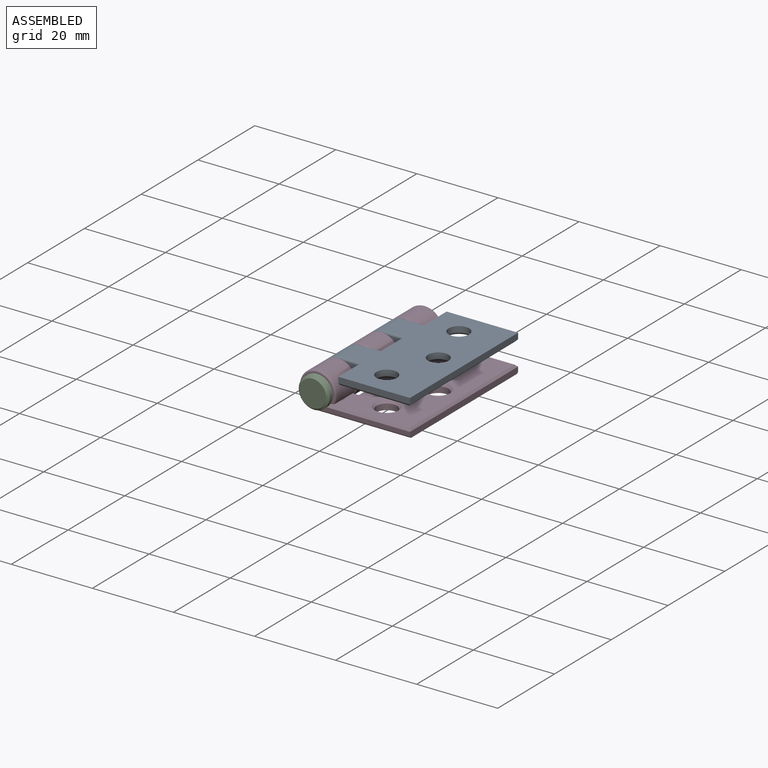
[diagram: assembled view]
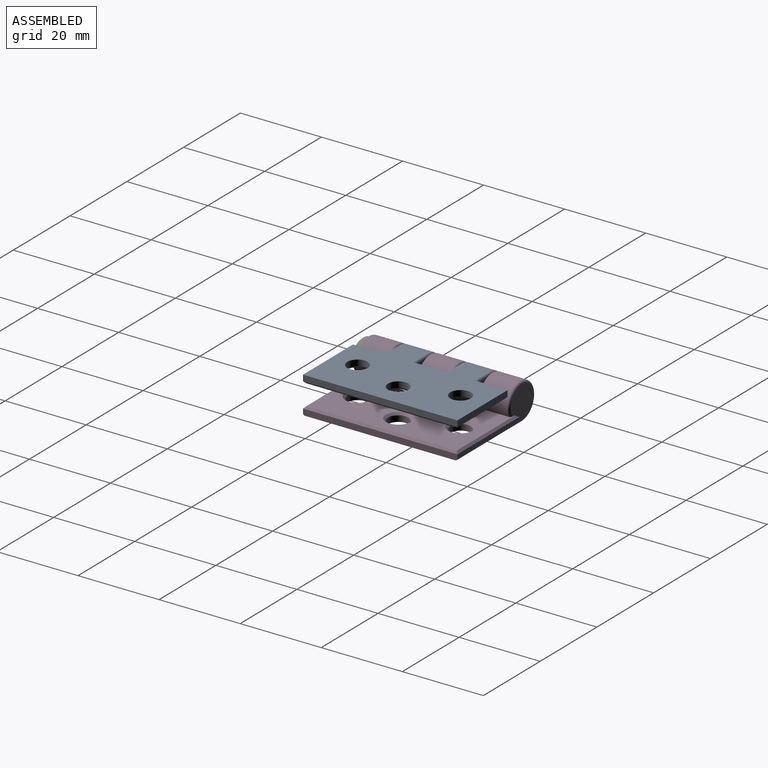
[diagram: assembled view, second angle]
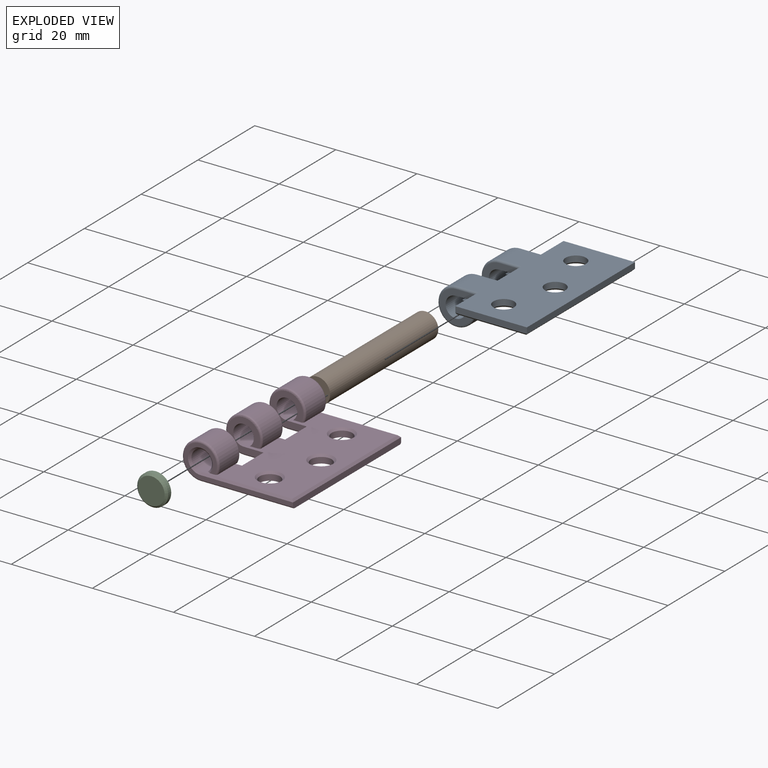
[diagram: exploded view]
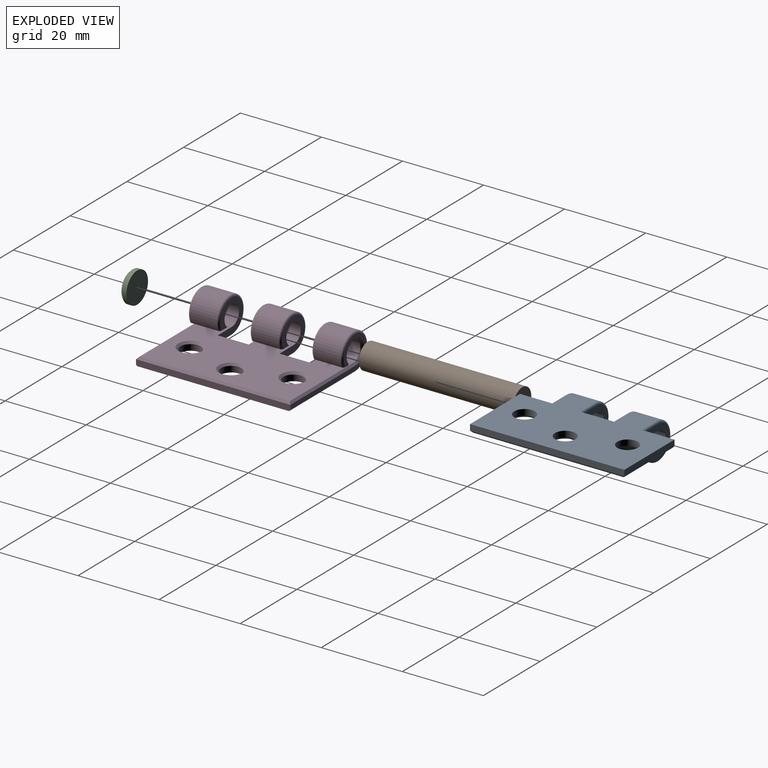
[diagram: exploded view, second angle]
ASSEMBLY  parts=4 mates=3
PART A: 35 faces, bbox 27.8x38.1x9.8 mm
  f0: plane 37.08x22.35mm, normal (0,0,1), area 627.4mm2, adj f6,f7,f10,f15,f16,f17,f18,f19
  f1: plane 38.1x22.86mm, normal (0,0,-1), area 680.3mm2, adj f2,f3,f8,f9,f11,f12,f13,f14
  f2: cylinder r=4.52mm len=9.04mm, axis (0,1,0), area 154.5mm2, adj f1,f4,f27,f29
  f3: cylinder r=4.52mm len=9.04mm, axis (0,1,0), area 154.5mm2, adj f1,f5,f31,f33
  f4: plane 7.62x2.5mm, normal (0,0,-1), area 18.9mm2, adj f2,f6,f23,f25,f27,f29
  f5: plane 7.62x2.5mm, normal (0,0,-1), area 18.9mm2, adj f3,f7,f21,f26,f31,f33
  f6: cylinder r=2.54mm len=7.62mm, axis (0,1,0), area 108.9mm2, adj f0,f4,f23,f25
  f7: cylinder r=2.54mm len=7.62mm, axis (0,1,0), area 108.9mm2, adj f0,f5,f21,f26
  f8: plane 17.64x1.47mm, normal (0,-1,0), area 26mm2, adj f1,f10,f11,f20
  f9: plane 17.64x1.47mm, normal (0,1,0), area 26mm2, adj f1,f11,f15,f22
  f10: plane 17.64x0.51mm, normal (0,-0.71,0.71), area 12.5mm2, adj f0,f8,f16,f20
  f11: plane 38.1x1.47mm, normal (-1,0,0), area 56.1mm2, adj f1,f8,f9,f16
  f12: cylinder r=2.54mm len=5.08mm, axis (0,0,1), area 23.5mm2, adj f1,f17
  f13: cylinder r=2.54mm len=5.08mm, axis (0,0,1), area 23.5mm2, adj f1,f18
  f14: cylinder r=2.54mm len=5.08mm, axis (0,0,1), area 23.5mm2, adj f1,f19
  f15: plane 17.64x0.51mm, normal (0,0.71,0.71), area 12.5mm2, adj f0,f9,f16,f22
  f16: plane 38.1x0.51mm, normal (-0.71,0,0.71), area 27mm2, adj f0,f10,f11,f15
  f17: cone r=2.54mm half-angle=45deg, axis (0,0,1), area 12.6mm2, adj f0,f12
  f18: cone r=2.54mm half-angle=45deg, axis (0,0,1), area 12.6mm2, adj f0,f13
  f19: cone r=2.54mm half-angle=45deg, axis (0,0,1), area 12.6mm2, adj f0,f14
  f20: plane 8.13x1.98mm, normal (1,0,0), area 15mm2, adj f0,f1,f8,f10,f21,f34
  f21: plane 9.23x8.03mm, normal (0,-1,0), area 33.7mm2, adj f0,f5,f7,f20,f33,f34
  f22: plane 8.13x1.98mm, normal (1,0,0), area 15mm2, adj f0,f1,f9,f15,f23,f28
  f23: plane 9.23x8.03mm, normal (0,1,0), area 33.7mm2, adj f0,f4,f6,f22,f27,f28
  f24: plane 8.64x1.98mm, normal (1,0,0), area 15.2mm2, adj f0,f1,f25,f26,f30,f32
  f25: plane 9.23x8.03mm, normal (0,-1,0), area 33.7mm2, adj f0,f4,f6,f24,f29,f30
  f26: plane 9.23x8.03mm, normal (0,1,0), area 33.7mm2, adj f0,f5,f7,f24,f31,f32
  f27: torus R=4.01mm, axis (0,-1,0), area 18mm2, adj f2,f4,f23,f28
  f28: cylinder r=0.51mm len=5.22mm, axis (1,0,0), area 4.2mm2, adj f1,f22,f23,f27
  f29: torus R=4.01mm, axis (0,-1,0), area 18mm2, adj f2,f4,f25,f30
  f30: cylinder r=0.51mm len=5.22mm, axis (-1,0,0), area 4.2mm2, adj f1,f24,f25,f29
  f31: torus R=4.01mm, axis (0,-1,0), area 18mm2, adj f3,f5,f26,f32
  f32: cylinder r=0.51mm len=5.22mm, axis (1,0,0), area 4.2mm2, adj f1,f24,f26,f31
  f33: torus R=4.01mm, axis (0,-1,0), area 18mm2, adj f3,f5,f21,f34
  f34: cylinder r=0.51mm len=5.22mm, axis (-1,0,0), area 4.2mm2, adj f1,f20,f21,f33
PART B: 3 faces, bbox 6.4x38.1x6.4 mm
  f0: cylinder r=3.17mm len=38.1mm, axis (0,-1,0), area 760.1mm2, adj f1,f2
  f1: plane 6.35x6.35mm, normal (0,1,0), area 31.7mm2, adj f0
  f2: plane 6.35x6.35mm, normal (0,-1,0), area 31.7mm2, adj f0
PART C: 4 faces, bbox 7.6x1.6x7.6 mm
  f0: cylinder r=3.81mm len=7.62mm, axis (0,1,0), area 25.8mm2, adj f2,f3
  f1: plane 6.6x6.6mm, normal (0,-1,0), area 34.3mm2, adj f3
  f2: plane 7.62x7.62mm, normal (0,1,0), area 45.6mm2, adj f0
  f3: cone r=3.3mm half-angle=45deg, axis (0,1,0), area 16.1mm2, adj f0,f1
PART D: 43 faces, bbox 27.8x38.1x9.8 mm
  f0: cylinder r=4.52mm len=9.04mm, axis (0,1,0), area 154.5mm2, adj f2,f8,f33,f35
  f1: cylinder r=4.52mm len=9.04mm, axis (0,1,0), area 154.5mm2, adj f3,f8,f37,f41
  f2: plane 7.62x2.5mm, normal (0,0,-1), area 18.9mm2, adj f0,f4,f26,f30,f33,f35
  f3: plane 7.62x2.5mm, normal (0,0,-1), area 18.7mm2, adj f1,f5,f12,f21,f27,f37,f41
  f4: cylinder r=2.54mm len=7.62mm, axis (0,1,0), area 108.9mm2, adj f2,f6,f26,f30
  f5: cylinder r=2.54mm len=7.11mm, axis (0,1,0), area 101.7mm2, adj f3,f6,f21,f27
  f6: plane 37.08x22.35mm, normal (0,0,1), area 666.3mm2, adj f4,f5,f11,f18,f19,f20,f22,f23
  f7: plane 38.1x1.47mm, normal (1,0,0), area 56mm2, adj f8,f12,f13,f19,f40,f42
  f8: plane 37.08x22.86mm, normal (0,0,-1), area 701.9mm2, adj f0,f1,f7,f9,f14,f15,f16,f25
  f9: cylinder r=4.52mm len=9.04mm, axis (0,1,0), area 154.5mm2, adj f8,f10,f31,f39
  f10: plane 7.62x2.5mm, normal (0,0,-1), area 18.7mm2, adj f9,f11,f13,f17,f29,f31,f39
  f11: cylinder r=2.54mm len=7.11mm, axis (0,1,0), area 101.7mm2, adj f6,f10,f17,f29
  f12: plane 26.87x8.03mm, normal (0,-1,0), area 40.2mm2, adj f3,f7,f20,f21,f41,f42
  f13: plane 26.87x8.03mm, normal (0,1,0), area 40.2mm2, adj f7,f10,f17,f18,f39,f40
  f14: cylinder r=2.54mm len=5.08mm, axis (0,0,1), area 23.5mm2, adj f8,f22
  f15: cylinder r=2.54mm len=5.08mm, axis (0,0,1), area 23.5mm2, adj f8,f23
  f16: cylinder r=2.54mm len=5.08mm, axis (0,0,1), area 23.5mm2, adj f8,f24
  f17: cone r=3.05mm half-angle=45deg, axis (0,1,0), area 11.1mm2, adj f10,f11,f13,f18
  f18: plane 22.86x0.51mm, normal (0,0.71,0.71), area 16.2mm2, adj f6,f13,f17,f19
  f19: plane 38.1x0.51mm, normal (0.71,0,0.71), area 27mm2, adj f6,f7,f18,f20
  f20: plane 22.86x0.51mm, normal (0,-0.71,0.71), area 16.2mm2, adj f6,f12,f19,f21
  f21: cone r=2.54mm half-angle=45deg, axis (0,-1,0), area 11.1mm2, adj f3,f5,f12,f20
  f22: cone r=2.54mm half-angle=45deg, axis (0,0,1), area 12.6mm2, adj f6,f14
  f23: cone r=2.54mm half-angle=45deg, axis (0,0,1), area 12.6mm2, adj f6,f15
  f24: cone r=2.54mm half-angle=45deg, axis (0,0,1), area 12.6mm2, adj f6,f16
  f25: plane 8.64x1.98mm, normal (-1,0,0), area 15.2mm2, adj f6,f8,f26,f27,f36,f38
  f26: plane 8.94x8.03mm, normal (0,-1,0), area 33.2mm2, adj f2,f4,f6,f25,f35,f36
  f27: plane 8.94x8.03mm, normal (0,1,0), area 33.2mm2, adj f3,f5,f6,f25,f37,f38
  f28: plane 8.64x1.98mm, normal (-1,0,0), area 15.2mm2, adj f6,f8,f29,f30,f32,f34
  f29: plane 8.94x8.03mm, normal (0,-1,0), area 33.2mm2, adj f6,f10,f11,f28,f31,f32
  f30: plane 8.94x8.03mm, normal (0,1,0), area 33.2mm2, adj f2,f4,f6,f28,f33,f34
  f31: torus R=4.01mm, axis (0,1,0), area 18mm2, adj f9,f10,f29,f32
  f32: cylinder r=0.51mm len=4.92mm, axis (-1,0,0), area 3.9mm2, adj f8,f28,f29,f31
  f33: torus R=4.01mm, axis (0,1,0), area 18mm2, adj f0,f2,f30,f34
  f34: cylinder r=0.51mm len=4.92mm, axis (1,0,0), area 3.9mm2, adj f8,f28,f30,f33
  f35: torus R=4.01mm, axis (0,1,0), area 18mm2, adj f0,f2,f26,f36
  f36: cylinder r=0.51mm len=4.92mm, axis (-1,0,0), area 3.9mm2, adj f8,f25,f26,f35
  f37: torus R=4.01mm, axis (0,1,0), area 18mm2, adj f1,f3,f27,f38
  f38: cylinder r=0.51mm len=4.92mm, axis (1,0,0), area 3.9mm2, adj f8,f25,f27,f37
  f39: torus R=4.01mm, axis (0,-1,0), area 18mm2, adj f9,f10,f13,f40
  f40: cylinder r=0.51mm len=22.86mm, axis (-1,0,0), area 18.2mm2, adj f7,f8,f13,f39
  f41: torus R=4.01mm, axis (0,-1,0), area 18mm2, adj f1,f3,f12,f42
  f42: cylinder r=0.51mm len=22.86mm, axis (1,0,0), area 18.2mm2, adj f7,f8,f12,f41
PLACE A rot(axis=(0,1,0),180deg) t=(-70.45,-27.73,-32.59)mm
PLACE B rot(axis=(0,1,0),16.3deg) t=(-83.26,-65.83,-6.54)mm
PLACE C t=(-84.03,-65.83,6.86)mm
PLACE D t=(-126.84,-27.73,14.27)mm fixed
MATE revolute D.f0 <-> A.f2  axis (0,-1,0) through (-70.45,-35.35,-9.16)mm
MATE revolute B.f0 <-> C.f0  axis (0,-1,0) through (-70.45,-65.83,-9.16)mm
MATE revolute D.f0 <-> B.f0  axis (0,-1,0) through (-70.45,-65.83,-9.16)mm
